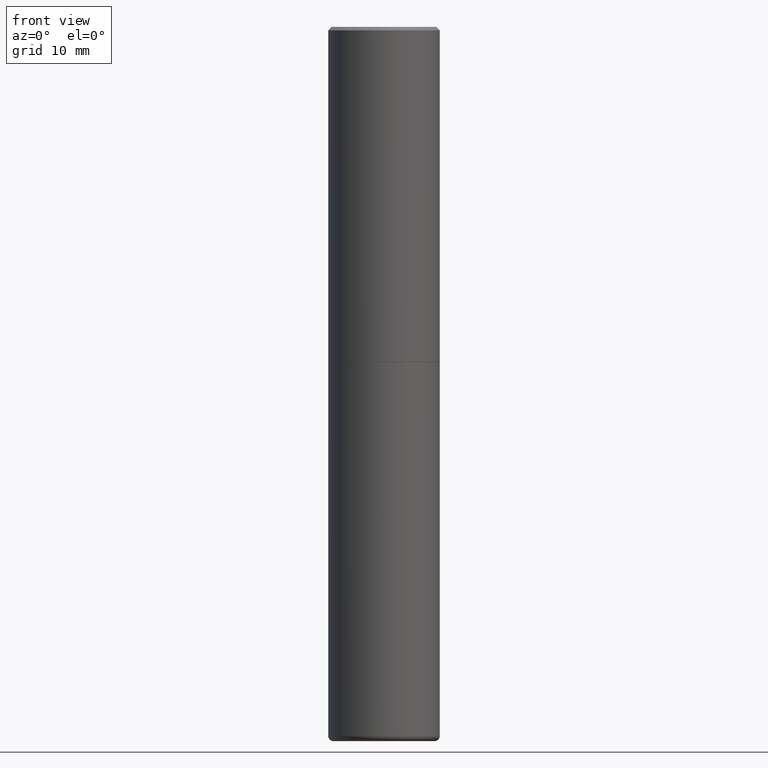
[diagram: clean part render]
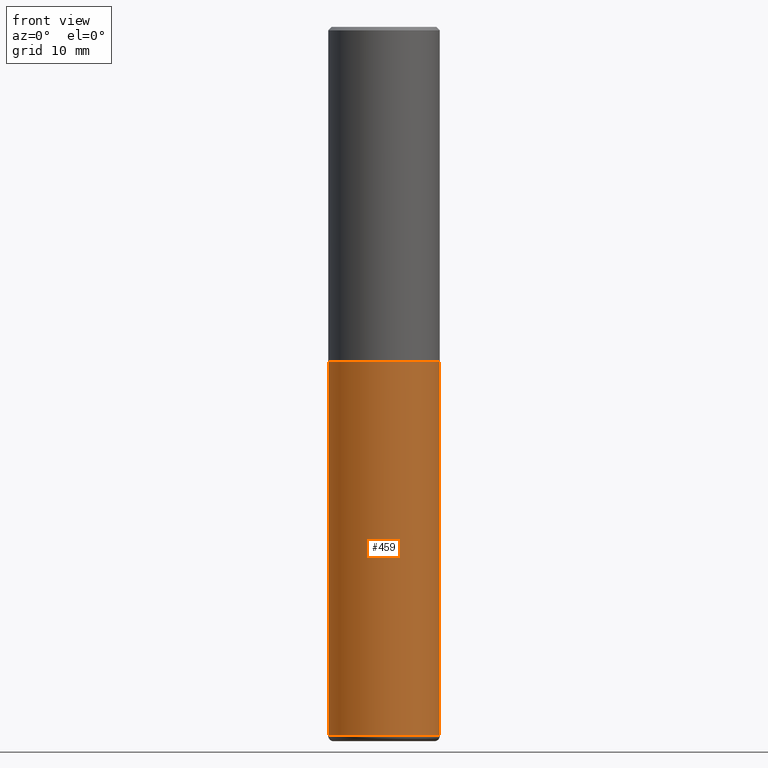
[diagram: same view with one face highlighted and labeled with its STEP entity id]
A machine part, front view. The second image highlights one B-rep face of the part: STEP entity #459.
In plain terms, the highlighted cylindrical surface (partial cylindrical patch) has radius 7.9375 mm, axis along (-0, 0, 1).
Its self-contained STEP definition (entity closure, byte-faithful):
#12 = VECTOR ( 'NONE', #355, 39.37007874015748143 ) ;
#30 = AXIS2_PLACEMENT_3D ( 'NONE', #64, #31, #35 ) ;
#31 = DIRECTION ( 'NONE',  ( -2.445468806185136597E-29, 3.491481338843145583E-15, 1.000000000000000000 ) ) ;
#35 = DIRECTION ( 'NONE',  ( 1.000000000000000000, -6.982962677686269077E-15, 0.000000000000000000 ) ) ;
#53 = ORIENTED_EDGE ( 'NONE', *, *, #283, .T. ) ;
#64 = CARTESIAN_POINT ( 'NONE',  ( 9.708513954033757613E-29, -1.386118490355461518E-14, -3.970001142308074993 ) ) ;
#68 = FACE_OUTER_BOUND ( 'NONE', #88, .T. ) ;
#88 = EDGE_LOOP ( 'NONE', ( #477, #267, #53, #204 ) ) ;
#111 = AXIS2_PLACEMENT_3D ( 'NONE', #168, #210, #429 ) ;
#123 = CIRCLE ( 'NONE', #30, 0.3125000000000000000 ) ;
#143 = VERTEX_POINT ( 'NONE', #389 ) ;
#152 = EDGE_CURVE ( 'NONE', #143, #404, #183, .T. ) ;
#158 = EDGE_CURVE ( 'NONE', #143, #492, #123, .T. ) ;
#163 = DIRECTION ( 'NONE',  ( 1.000000000000000000, -6.982962677686266711E-15, 4.876176775795936353E-29 ) ) ;
#168 = CARTESIAN_POINT ( 'NONE',  ( 4.585254011597131119E-29, -6.546527510330898707E-15, -1.875000000000000000 ) ) ;
#170 = CARTESIAN_POINT ( 'NONE',  ( 0.000000000000000000, 0.000000000000000000, 0.000000000000000000 ) ) ;
#180 = CARTESIAN_POINT ( 'NONE',  ( 0.3125000000000000000, -1.604336074033157510E-14, -3.970001142308074993 ) ) ;
#183 = LINE ( 'NONE', #229, #319 ) ;
#191 = AXIS2_PLACEMENT_3D ( 'NONE', #170, #325, #163 ) ;
#204 = ORIENTED_EDGE ( 'NONE', *, *, #312, .F. ) ;
#210 = DIRECTION ( 'NONE',  ( -2.445468806185136597E-29, 3.491481338843145583E-15, 1.000000000000000000 ) ) ;
#229 = CARTESIAN_POINT ( 'NONE',  ( -0.3125000000000000000, 2.220446049250313081E-15, -1.537167215704658232E-29 ) ) ;
#267 = ORIENTED_EDGE ( 'NONE', *, *, #158, .T. ) ;
#283 = EDGE_CURVE ( 'NONE', #492, #450, #350, .T. ) ;
#302 = DIRECTION ( 'NONE',  ( -2.445468806185136877E-29, 3.491481338843145188E-15, 1.000000000000000000 ) ) ;
#304 = CARTESIAN_POINT ( 'NONE',  ( 0.3125000000000000000, -8.728703347107857054E-15, -1.875000000000000000 ) ) ;
#307 = CARTESIAN_POINT ( 'NONE',  ( -0.3125000000000000000, -7.983410157692443863E-15, -1.875000000000000000 ) ) ;
#312 = EDGE_CURVE ( 'NONE', #404, #450, #370, .T. ) ;
#319 = VECTOR ( 'NONE', #302, 39.37007874015748143 ) ;
#325 = DIRECTION ( 'NONE',  ( -2.445468806185136597E-29, 3.491481338843145583E-15, 1.000000000000000000 ) ) ;
#350 = LINE ( 'NONE', #394, #12 ) ;
#355 = DIRECTION ( 'NONE',  ( -2.445468806185136877E-29, 3.491481338843145188E-15, 1.000000000000000000 ) ) ;
#370 = CIRCLE ( 'NONE', #111, 0.3125000000000000000 ) ;
#389 = CARTESIAN_POINT ( 'NONE',  ( -0.3125000000000000000, -7.983410157692443863E-15, -3.970001142308074993 ) ) ;
#394 = CARTESIAN_POINT ( 'NONE',  ( 0.3125000000000000000, -2.182175836776958347E-15, 1.523805242436230075E-29 ) ) ;
#403 = CYLINDRICAL_SURFACE ( 'NONE', #191, 0.3125000000000000000 ) ;
#404 = VERTEX_POINT ( 'NONE', #307 ) ;
#429 = DIRECTION ( 'NONE',  ( 1.000000000000000000, -6.982962677686265133E-15, 0.000000000000000000 ) ) ;
#450 = VERTEX_POINT ( 'NONE', #304 ) ;
#459 = ADVANCED_FACE ( 'NONE', ( #68 ), #403, .T. ) ;
#477 = ORIENTED_EDGE ( 'NONE', *, *, #152, .F. ) ;
#492 = VERTEX_POINT ( 'NONE', #180 ) ;